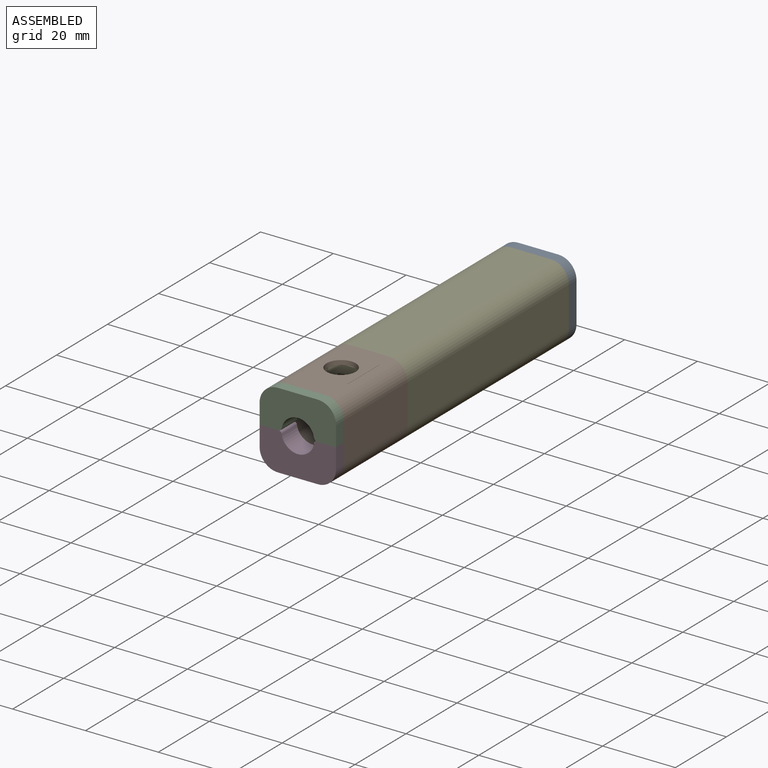
[diagram: assembled view]
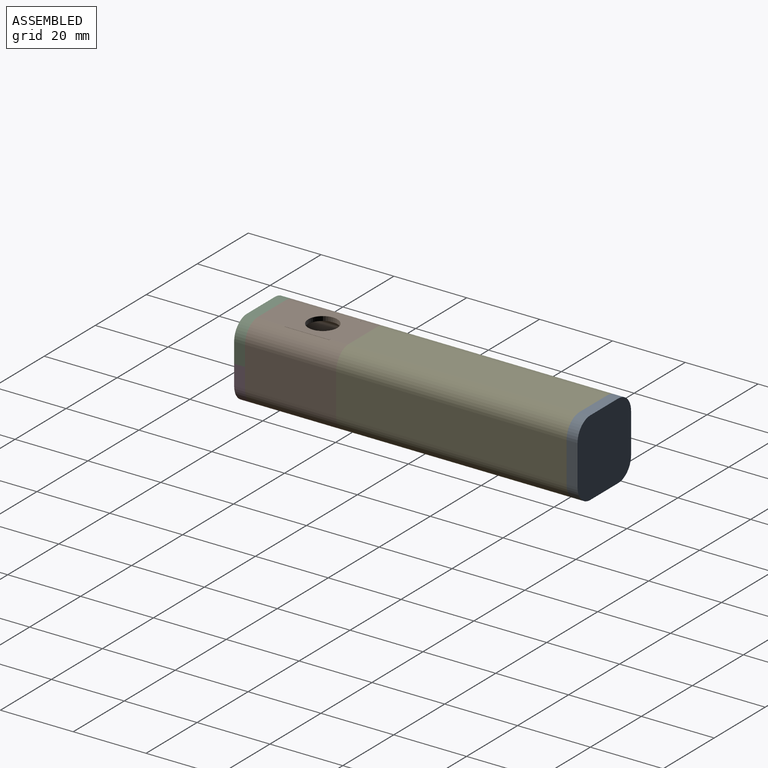
[diagram: assembled view, second angle]
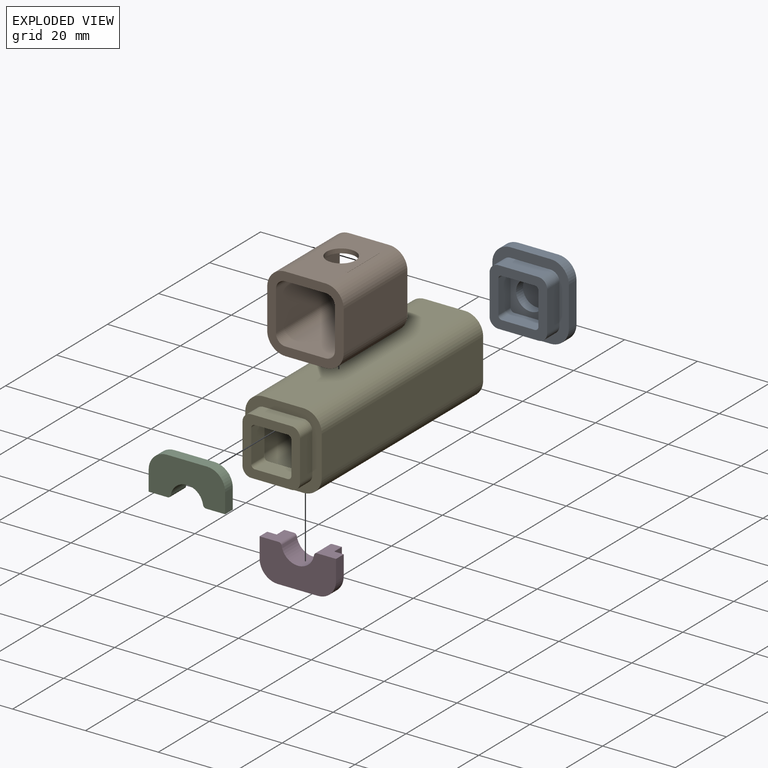
[diagram: exploded view]
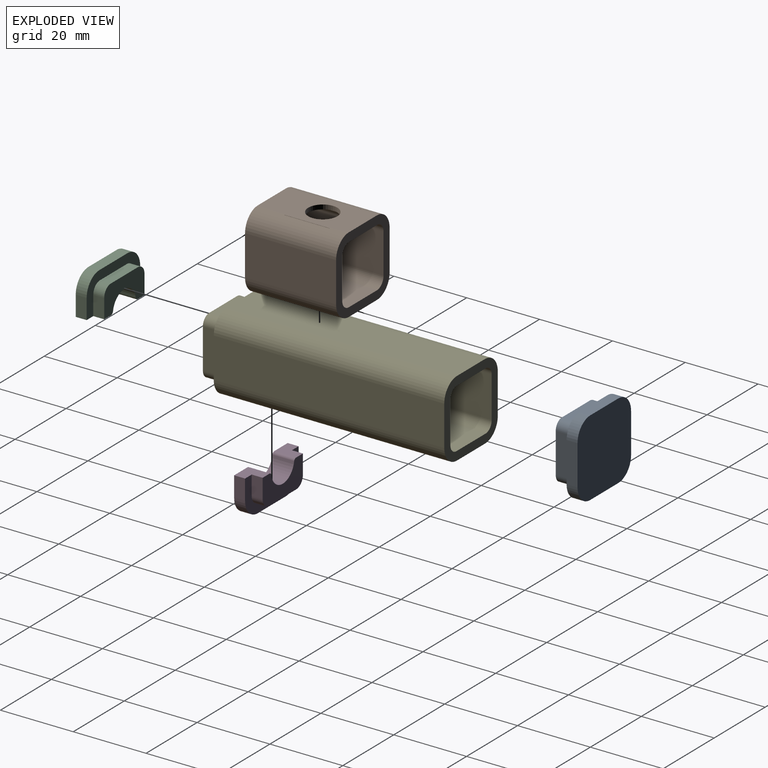
[diagram: exploded view, second angle]
ASSEMBLY  parts=5 mates=4
PART A: 30 faces, bbox 21x7.8x21 mm
  f0: cylinder r=4mm len=8mm, axis (0,1,0), area 67.9mm2, adj f7,f29
  f1: plane 21x21mm, normal (0,1,0), area 174.8mm2, adj f2,f3,f4,f5,f11,f12,f13,f14
  f2: plane 11x3mm, normal (0,0,1), area 33mm2, adj f1,f6,f17,f20
  f3: plane 11x3mm, normal (-1,0,0), area 33mm2, adj f1,f6,f17,f18
  f4: plane 11x3mm, normal (0,0,-1), area 33mm2, adj f1,f6,f18,f19
  f5: plane 11x3mm, normal (1,0,0), area 33mm2, adj f1,f6,f19,f20
  f6: plane 21x21mm, normal (0,-1,0), area 419.5mm2, adj f2,f3,f4,f5,f17,f18,f19,f20
  f7: plane 11x11mm, normal (0,1,0), area 69.9mm2, adj f0,f8,f9,f10,f15,f25,f26,f27
  f8: plane 9x4.8mm, normal (0,0,-1), area 43.2mm2, adj f7,f16,f25,f28
  f9: plane 9x4.8mm, normal (1,0,0), area 43.2mm2, adj f7,f16,f25,f26
  f10: plane 9x4.8mm, normal (0,0,1), area 43.2mm2, adj f7,f16,f26,f27
  f11: plane 11x4.8mm, normal (-1,0,0), area 52.8mm2, adj f1,f16,f21,f24
  f12: plane 11x4.8mm, normal (0,0,1), area 52.8mm2, adj f1,f16,f21,f22
  f13: plane 11x4.8mm, normal (1,0,0), area 52.8mm2, adj f1,f16,f22,f23
  f14: plane 11x4.8mm, normal (0,0,-1), area 52.8mm2, adj f1,f16,f23,f24
  f15: plane 9x4.8mm, normal (-1,0,0), area 43.2mm2, adj f7,f16,f27,f28
  f16: plane 15.8x15.8mm, normal (0,1,0), area 124.6mm2, adj f8,f9,f10,f11,f12,f13,f14,f15
  f17: cylinder r=5mm len=5mm, axis (0,-1,0), area 23.6mm2, adj f1,f2,f3,f6
  f18: cylinder r=5mm len=5mm, axis (0,1,0), area 23.6mm2, adj f1,f3,f4,f6
  f19: cylinder r=5mm len=5mm, axis (0,-1,0), area 23.6mm2, adj f1,f4,f5,f6
  f20: cylinder r=5mm len=5mm, axis (0,1,0), area 23.6mm2, adj f1,f2,f5,f6
  f21: cylinder r=2.4mm len=4.8mm, axis (0,1,0), area 18.1mm2, adj f1,f11,f12,f16
  f22: cylinder r=2.4mm len=4.8mm, axis (0,-1,0), area 18.1mm2, adj f1,f12,f13,f16
  f23: cylinder r=2.4mm len=4.8mm, axis (0,1,0), area 18.1mm2, adj f1,f13,f14,f16
  f24: cylinder r=2.4mm len=4.8mm, axis (0,-1,0), area 18.1mm2, adj f1,f11,f14,f16
  f25: cylinder r=1mm len=4.8mm, axis (0,-1,0), area 7.5mm2, adj f7,f8,f9,f16
  f26: cylinder r=1mm len=4.8mm, axis (0,1,0), area 7.5mm2, adj f7,f9,f10,f16
  f27: cylinder r=1mm len=4.8mm, axis (0,-1,0), area 7.5mm2, adj f7,f10,f15,f16
  f28: cylinder r=1mm len=4.8mm, axis (0,1,0), area 7.5mm2, adj f7,f8,f15,f16
  f29: plane 8x8mm, normal (0,1,0), area 50.3mm2, adj f0
PART B: 31 faces, bbox 21x25x21 mm
  f0: plane 11x4.8mm, normal (0,0,-1), area 52.8mm2, adj f3,f4,f13,f20
  f1: cylinder r=5mm len=25mm, axis (0,-1,0), area 187.6mm2, adj f5,f6,f13,f14,f23,f24,f28
  f2: cylinder r=5mm len=25mm, axis (0,1,0), area 187.6mm2, adj f5,f12,f13,f14,f25,f26,f27
  f3: cylinder r=2.6mm len=25mm, axis (0,1,0), area 93.3mm2, adj f0,f8,f9,f13,f14,f19,f20,f22
  f4: cylinder r=2.6mm len=25mm, axis (0,-1,0), area 93.3mm2, adj f0,f9,f10,f13,f14,f20,f21,f22
  f5: plane 25x12.4mm, normal (0,0,1), area 242.1mm2, adj f1,f2,f13,f14,f23,f24,f25,f26
  f6: plane 25x11mm, normal (-1,0,0), area 275mm2, adj f1,f13,f14,f15
  f7: plane 25x11mm, normal (0,0,-1), area 275mm2, adj f13,f14,f15,f16
  f8: plane 25x11mm, normal (1,0,0), area 275mm2, adj f3,f13,f14,f18
  f9: plane 11x7.8mm, normal (0,0,-1), area 85.8mm2, adj f3,f4,f14,f22
  f10: plane 25x11mm, normal (-1,0,0), area 275mm2, adj f4,f13,f14,f17
  f11: plane 25x11mm, normal (0,0,1), area 275mm2, adj f13,f14,f17,f18
  f12: plane 25x11mm, normal (1,0,0), area 275mm2, adj f2,f13,f14,f16
  f13: plane 21x21mm, normal (0,-1,0), area 162.9mm2, adj f0,f1,f2,f3,f4,f5,f6,f7
  f14: plane 21x21mm, normal (0,1,0), area 162.9mm2, adj f1,f2,f3,f4,f5,f6,f7,f8
  f15: cylinder r=5mm len=25mm, axis (0,1,0), area 196.3mm2, adj f6,f7,f13,f14
  f16: cylinder r=5mm len=25mm, axis (0,-1,0), area 196.3mm2, adj f7,f12,f13,f14
  f17: cylinder r=2.6mm len=25mm, axis (0,1,0), area 102.1mm2, adj f10,f11,f13,f14
  f18: cylinder r=2.6mm len=25mm, axis (0,-1,0), area 102.1mm2, adj f8,f11,f13,f14
  f19: plane 12.4x1.3mm, normal (1,0,0), area 16.1mm2, adj f3,f20,f22,f30
  f20: plane 12.4x1.3mm, normal (0,1,0), area 14.9mm2, adj f0,f3,f4,f19,f21,f30
  f21: plane 12.4x1.3mm, normal (-1,0,0), area 16.1mm2, adj f4,f20,f22,f30
  f22: plane 12.4x1.3mm, normal (0,-1,0), area 14.9mm2, adj f3,f4,f9,f19,f21,f30
  f23: plane 0.7x0.05mm, normal (0,-1,0), area 0mm2, adj f1,f5,f28
  f24: plane 0.7x0.05mm, normal (0,1,0), area 0mm2, adj f1,f5,f28
  f25: plane 0.7x0.05mm, normal (0,-1,0), area 0mm2, adj f2,f5,f26
  f26: plane 12.4x0.05mm, normal (1,0,0), area 0.6mm2, adj f2,f5,f25,f27
  f27: plane 0.7x0.05mm, normal (0,1,0), area 0mm2, adj f2,f5,f26
  f28: plane 12.4x0.05mm, normal (-1,0,0), area 0.6mm2, adj f1,f5,f23,f24
  f29: cylinder r=4mm len=8mm, axis (0,0,1), area 30.2mm2, adj f5,f30
  f30: plane 12.4x12.4mm, normal (0,0,-1), area 103.5mm2, adj f19,f20,f21,f22,f29
PART C: 18 faces, bbox 21x6x10.5 mm
  f0: cylinder r=4.5mm len=8.9mm, axis (0,1,0), area 76.6mm2, adj f6,f13,f16,f17
  f1: plane 6x5.26mm, normal (0,0,-1), area 23.8mm2, adj f2,f6,f7,f11,f13,f16
  f2: plane 5.5x3mm, normal (1,0,0), area 16.5mm2, adj f1,f6,f7,f8
  f3: plane 11x3mm, normal (0,0,1), area 33mm2, adj f6,f7,f8,f9
  f4: plane 5.5x3mm, normal (-1,0,0), area 16.5mm2, adj f5,f6,f7,f9
  f5: plane 6x5.26mm, normal (0,0,-1), area 23.8mm2, adj f4,f6,f7,f12,f13,f17
  f6: plane 21x10.5mm, normal (0,-1,0), area 177.7mm2, adj f0,f1,f2,f3,f4,f5,f8,f9
  f7: plane 21x10.5mm, normal (0,1,0), area 87.9mm2, adj f1,f2,f3,f4,f5,f8,f9,f10
  f8: cylinder r=5mm len=5mm, axis (0,1,0), area 23.6mm2, adj f2,f3,f6,f7
  f9: cylinder r=5mm len=5mm, axis (0,-1,0), area 23.6mm2, adj f3,f4,f6,f7
  f10: plane 10.6x3mm, normal (0,0,1), area 31.8mm2, adj f7,f13,f14,f15
  f11: plane 5.3x3mm, normal (1,0,0), area 15.9mm2, adj f1,f7,f13,f14
  f12: plane 5.3x3mm, normal (-1,0,0), area 15.9mm2, adj f5,f7,f13,f15
  f13: plane 15.8x7.9mm, normal (0,1,0), area 89.9mm2, adj f0,f1,f5,f10,f11,f12,f14,f15
  f14: cylinder r=2.6mm len=3mm, axis (0,1,0), area 12.3mm2, adj f7,f10,f11,f13
  f15: cylinder r=2.6mm len=3mm, axis (0,-1,0), area 12.3mm2, adj f7,f10,f12,f13
  f16: cylinder r=0.8mm len=6mm, axis (0,1,0), area 6.8mm2, adj f0,f1,f6,f13
  f17: cylinder r=0.8mm len=6mm, axis (0,1,0), area 6.8mm2, adj f0,f5,f6,f13
PART D: same geometry as C
PART E: 40 faces, bbox 21x68.1x21 mm
  f0: plane 11.4x11.4mm, normal (0,1,0), area 9.8mm2, adj f14,f15,f16,f17,f20,f21,f22,f23
  f1: plane 21x21mm, normal (0,-1,0), area 174.8mm2, adj f2,f3,f4,f9,f11,f12,f13,f18
  f2: plane 63.3x11mm, normal (0,0,1), area 696.3mm2, adj f1,f10,f24,f27
  f3: plane 63.3x11mm, normal (-1,0,0), area 696.3mm2, adj f1,f10,f24,f25
  f4: plane 63.3x11mm, normal (0,0,-1), area 696.3mm2, adj f1,f10,f25,f26
  f5: plane 60.6x11.4mm, normal (1,0,0), area 690.8mm2, adj f10,f23,f30,f31
  f6: plane 60.6x11.4mm, normal (0,0,-1), area 690.8mm2, adj f10,f21,f28,f31
  f7: plane 60.6x11.4mm, normal (-1,0,0), area 690.8mm2, adj f10,f20,f28,f29
  f8: plane 60.6x11.4mm, normal (0,0,1), area 690.8mm2, adj f10,f22,f29,f30
  f9: plane 63.3x11mm, normal (1,0,0), area 696.3mm2, adj f1,f10,f26,f27
  f10: plane 21x21mm, normal (0,1,0), area 162mm2, adj f2,f3,f4,f5,f6,f7,f8,f9
  f11: plane 11x4.8mm, normal (0,0,1), area 52.8mm2, adj f1,f19,f32,f35
  f12: plane 11x4.8mm, normal (-1,0,0), area 52.8mm2, adj f1,f19,f32,f33
  f13: plane 11x4.8mm, normal (0,0,-1), area 52.8mm2, adj f1,f19,f33,f34
  f14: plane 9x5.1mm, normal (1,0,0), area 45.9mm2, adj f0,f19,f36,f39
  f15: plane 9x5.1mm, normal (0,0,-1), area 45.9mm2, adj f0,f19,f36,f37
  f16: plane 9x5.1mm, normal (-1,0,0), area 45.9mm2, adj f0,f19,f37,f38
  f17: plane 9x5.1mm, normal (0,0,1), area 45.9mm2, adj f0,f19,f38,f39
  f18: plane 11x4.8mm, normal (1,0,0), area 52.8mm2, adj f1,f19,f34,f35
  f19: plane 15.8x15.8mm, normal (0,-1,0), area 124.6mm2, adj f11,f12,f13,f14,f15,f16,f17,f18
  f20: plane 14.79x2.4mm, normal (-0.71,0.71,0), area 45.1mm2, adj f0,f7,f21,f22,f28,f29
  f21: plane 14.79x2.4mm, normal (0,0.71,-0.71), area 45.1mm2, adj f0,f6,f20,f23,f28,f31
  f22: plane 14.79x2.4mm, normal (0,0.71,0.71), area 45.1mm2, adj f0,f8,f20,f23,f29,f30
  f23: plane 14.79x2.4mm, normal (0.71,0.71,0), area 45.1mm2, adj f0,f5,f21,f22,f30,f31
  f24: cylinder r=5mm len=63.3mm, axis (0,-1,0), area 497.2mm2, adj f1,f2,f3,f10
  f25: cylinder r=5mm len=63.3mm, axis (0,1,0), area 497.2mm2, adj f1,f3,f4,f10
  f26: cylinder r=5mm len=63.3mm, axis (0,-1,0), area 497.2mm2, adj f1,f4,f9,f10
  f27: cylinder r=5mm len=63.3mm, axis (0,1,0), area 497.2mm2, adj f1,f2,f9,f10
  f28: cylinder r=2.4mm len=61.3mm, axis (0,-1,0), area 229.4mm2, adj f6,f7,f10,f20,f21
  f29: cylinder r=2.4mm len=61.3mm, axis (0,1,0), area 229.4mm2, adj f7,f8,f10,f20,f22
  f30: cylinder r=2.4mm len=61.3mm, axis (0,-1,0), area 229.4mm2, adj f5,f8,f10,f22,f23
  f31: cylinder r=2.4mm len=61.3mm, axis (0,1,0), area 229.4mm2, adj f5,f6,f10,f21,f23
  f32: cylinder r=2.4mm len=4.8mm, axis (0,-1,0), area 18.1mm2, adj f1,f11,f12,f19
  f33: cylinder r=2.4mm len=4.8mm, axis (0,1,0), area 18.1mm2, adj f1,f12,f13,f19
  f34: cylinder r=2.4mm len=4.8mm, axis (0,-1,0), area 18.1mm2, adj f1,f13,f18,f19
  f35: cylinder r=2.4mm len=4.8mm, axis (0,1,0), area 18.1mm2, adj f1,f11,f18,f19
  f36: cylinder r=1mm len=5.1mm, axis (0,1,0), area 8mm2, adj f0,f14,f15,f19
  f37: cylinder r=1mm len=5.1mm, axis (0,-1,0), area 8mm2, adj f0,f15,f16,f19
  f38: cylinder r=1mm len=5.1mm, axis (0,1,0), area 8mm2, adj f0,f16,f17,f19
  f39: cylinder r=1mm len=5.1mm, axis (0,-1,0), area 8mm2, adj f0,f14,f17,f19
PLACE A rot(axis=(0,0,1),180deg) t=(2.48,97.42,-8.31)mm
PLACE B rot(axis=(0,0,1),180deg) t=(7.44,9.12,-4.64)mm
PLACE C rot(axis=(0,0,1),0deg) t=(-1.99,9.12,-7.2)mm
PLACE D rot(axis=(0,1,0),180deg) t=(-1.99,9.12,-17.28)mm
PLACE E rot(axis=(0,0,-1),0deg) t=(-7.55,97.42,-4.43)mm
MATE fastened B.f13 <-> E.f1  axis (0,1,0) through (3.51,34.12,-1.74)mm
MATE fastened C.f7 <-> B.f14  axis (0,1,0) through (-7.49,9.12,-1.74)mm
MATE fastened E.f10 <-> A.f1  axis (0,1,0) through (-12.49,97.42,-6.74)mm
MATE fastened C.f5 <-> D.f1  axis (0,0,-1) through (-12.49,6.12,-12.24)mm
